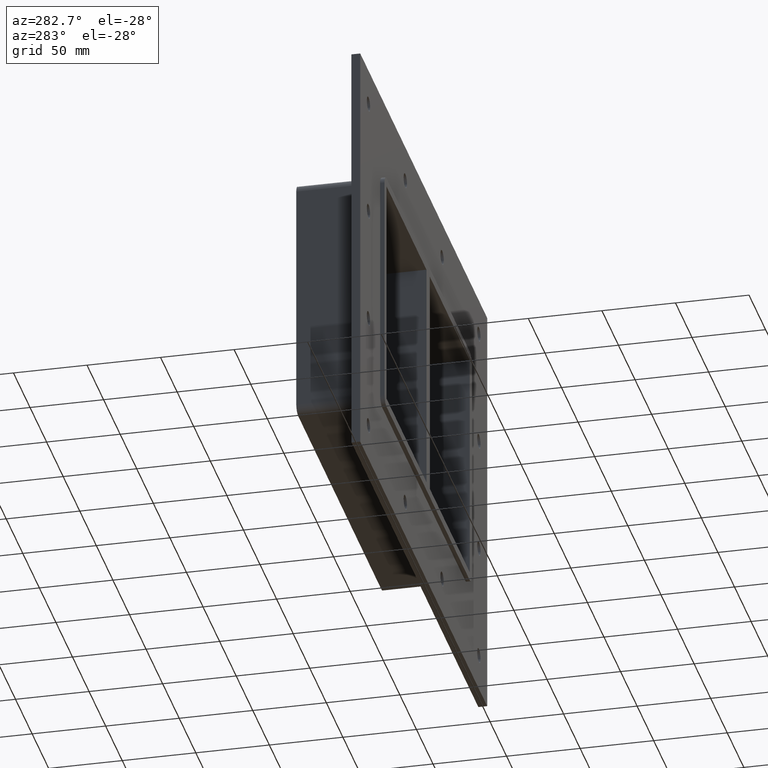
[diagram: clean part render]
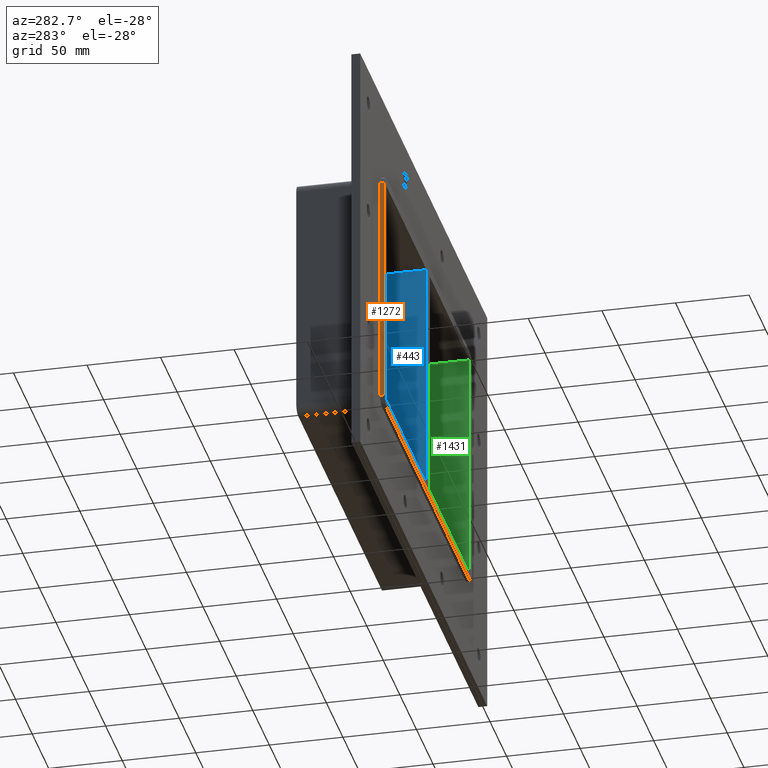
[diagram: same view with three faces highlighted in distinct colors, each labeled with its STEP entity id]
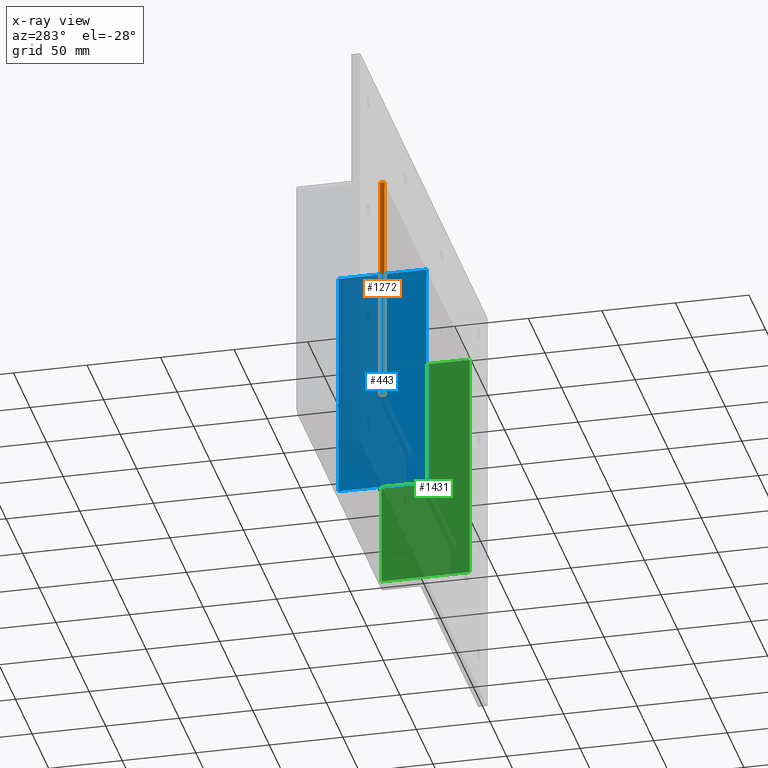
[diagram: x-ray of the same camera — body ghosted, the three highlighted faces saturated]
A machine part, auxiliary view with three faces highlighted in distinct colors.
The next image is the same camera in x-ray (body ghosted, the three faces saturated) — at least one of them is partly hidden behind the body in this view.
Their STEP definitions:

[orange] entity #1272 — the highlighted planar face has unit normal (-1, 0, 0).
#829=CARTESIAN_POINT('',(-131.5,0.0,-79.750000000000028));
#830=VERTEX_POINT('',#829);
#840=CARTESIAN_POINT('',(-131.5,0.0,79.750000000000028));
#841=VERTEX_POINT('',#840);
#842=CARTESIAN_POINT('',(-131.5,0.0,79.750000000000014));
#843=DIRECTION('',(0.0,0.0,-1.0));
#844=VECTOR('',#843,159.50000000000006);
#845=LINE('',#842,#844);
#846=EDGE_CURVE('',#841,#830,#845,.T.);
#1182=CARTESIAN_POINT('',(-131.5,-3.0,79.750000000000014));
#1183=VERTEX_POINT('',#1182);
#1184=CARTESIAN_POINT('',(-131.5,0.0,79.750000000000028));
#1185=DIRECTION('',(0.0,-1.0,0.0));
#1186=VECTOR('',#1185,3.0);
#1187=LINE('',#1184,#1186);
#1188=EDGE_CURVE('',#841,#1183,#1187,.T.);
#1249=CARTESIAN_POINT('',(-131.5,0.0,-85.750000000000028));
#1250=DIRECTION('',(-1.0,0.0,0.0));
#1251=DIRECTION('',(0.0,0.0,1.0));
#1252=AXIS2_PLACEMENT_3D('',#1249,#1250,#1251);
#1253=PLANE('',#1252);
#1254=ORIENTED_EDGE('',*,*,#846,.T.);
#1255=CARTESIAN_POINT('',(-131.5,-3.0,-79.750000000000028));
#1256=VERTEX_POINT('',#1255);
#1257=CARTESIAN_POINT('',(-131.5,-3.0,-79.750000000000028));
#1258=DIRECTION('',(0.0,1.0,0.0));
#1259=VECTOR('',#1258,3.0);
#1260=LINE('',#1257,#1259);
#1261=EDGE_CURVE('',#1256,#830,#1260,.T.);
#1262=ORIENTED_EDGE('',*,*,#1261,.F.);
#1263=CARTESIAN_POINT('',(-131.5,-3.0,79.750000000000028));
#1264=DIRECTION('',(0.0,0.0,-1.0));
#1265=VECTOR('',#1264,159.50000000000006);
#1266=LINE('',#1263,#1265);
#1267=EDGE_CURVE('',#1183,#1256,#1266,.T.);
#1268=ORIENTED_EDGE('',*,*,#1267,.F.);
#1269=ORIENTED_EDGE('',*,*,#1188,.F.);
#1270=EDGE_LOOP('',(#1254,#1262,#1268,#1269));
#1271=FACE_OUTER_BOUND('',#1270,.T.);
#1272=ADVANCED_FACE('',(#1271),#1253,.T.);

[blue] entity #443 — the highlighted planar face has unit normal (-1, 0, 0).
#404=CARTESIAN_POINT('',(-5.000000000001279,-3.0,-79.750000000000014));
#405=DIRECTION('',(-1.0,0.0,0.0));
#406=DIRECTION('',(0.0,0.0,1.0));
#407=AXIS2_PLACEMENT_3D('',#404,#405,#406);
#408=PLANE('',#407);
#409=CARTESIAN_POINT('',(-5.000000000001279,-3.0,-79.750000000000014));
#410=VERTEX_POINT('',#409);
#411=CARTESIAN_POINT('',(-5.000000000001315,-3.0,79.750000000000014));
#412=VERTEX_POINT('',#411);
#413=CARTESIAN_POINT('',(-5.000000000001279,-3.0,-79.750000000000014));
#414=DIRECTION('',(0.0,0.0,1.0));
#415=VECTOR('',#414,159.50000000000003);
#416=LINE('',#413,#415);
#417=EDGE_CURVE('',#410,#412,#416,.T.);
#418=ORIENTED_EDGE('',*,*,#417,.T.);
#419=CARTESIAN_POINT('',(-5.000000000001315,57.0,79.750000000000014));
#420=VERTEX_POINT('',#419);
#421=CARTESIAN_POINT('',(-5.000000000001315,57.000000000000007,79.750000000000014));
#422=DIRECTION('',(0.0,-1.0,0.0));
#423=VECTOR('',#422,60.000000000000007);
#424=LINE('',#421,#423);
#425=EDGE_CURVE('',#420,#412,#424,.T.);
#426=ORIENTED_EDGE('',*,*,#425,.F.);
#427=CARTESIAN_POINT('',(-5.000000000001279,57.0,-79.750000000000014));
#428=VERTEX_POINT('',#427);
#429=CARTESIAN_POINT('',(-5.000000000001279,57.0,-79.750000000000014));
#430=DIRECTION('',(0.0,0.0,1.0));
#431=VECTOR('',#430,159.50000000000003);
#432=LINE('',#429,#431);
#433=EDGE_CURVE('',#428,#420,#432,.T.);
#434=ORIENTED_EDGE('',*,*,#433,.F.);
#435=CARTESIAN_POINT('',(-5.000000000001279,-3.0,-79.750000000000014));
#436=DIRECTION('',(0.0,1.0,0.0));
#437=VECTOR('',#436,60.000000000000007);
#438=LINE('',#435,#437);
#439=EDGE_CURVE('',#410,#428,#438,.T.);
#440=ORIENTED_EDGE('',*,*,#439,.F.);
#441=EDGE_LOOP('',(#418,#426,#434,#440));
#442=FACE_OUTER_BOUND('',#441,.T.);
#443=ADVANCED_FACE('',(#442),#408,.T.);

[green] entity #1431 — the highlighted planar face has unit normal (1, 0, 0).
#521=CARTESIAN_POINT('',(125.49999999999997,-3.0,-79.750000000000014));
#522=VERTEX_POINT('',#521);
#529=CARTESIAN_POINT('',(125.49999999999997,57.0,-79.750000000000014));
#530=VERTEX_POINT('',#529);
#531=CARTESIAN_POINT('',(125.49999999999997,56.999999999999993,-79.750000000000014));
#532=DIRECTION('',(0.0,-1.0,0.0));
#533=VECTOR('',#532,59.999999999999993);
#534=LINE('',#531,#533);
#535=EDGE_CURVE('',#530,#522,#534,.T.);
#552=CARTESIAN_POINT('',(125.49999999999997,57.0,79.750000000000014));
#553=VERTEX_POINT('',#552);
#560=CARTESIAN_POINT('',(125.49999999999997,-3.0,79.750000000000014));
#561=VERTEX_POINT('',#560);
#562=CARTESIAN_POINT('',(125.49999999999997,-3.0,79.750000000000014));
#563=DIRECTION('',(0.0,1.0,0.0));
#564=VECTOR('',#563,60.0);
#565=LINE('',#562,#564);
#566=EDGE_CURVE('',#561,#553,#565,.T.);
#1314=CARTESIAN_POINT('',(125.49999999999997,-3.0,79.750000000000014));
#1315=DIRECTION('',(0.0,0.0,-1.0));
#1316=VECTOR('',#1315,159.50000000000006);
#1317=LINE('',#1314,#1316);
#1318=EDGE_CURVE('',#561,#522,#1317,.T.);
#1415=CARTESIAN_POINT('',(125.49999999999997,0.0,79.750000000000014));
#1416=DIRECTION('',(1.0,0.0,0.0));
#1417=DIRECTION('',(0.0,0.0,-1.0));
#1418=AXIS2_PLACEMENT_3D('',#1415,#1416,#1417);
#1419=PLANE('',#1418);
#1420=ORIENTED_EDGE('',*,*,#535,.T.);
#1421=ORIENTED_EDGE('',*,*,#1318,.F.);
#1422=ORIENTED_EDGE('',*,*,#566,.T.);
#1423=CARTESIAN_POINT('',(125.49999999999997,57.0,-79.750000000000028));
#1424=DIRECTION('',(0.0,0.0,1.0));
#1425=VECTOR('',#1424,159.50000000000006);
#1426=LINE('',#1423,#1425);
#1427=EDGE_CURVE('',#530,#553,#1426,.T.);
#1428=ORIENTED_EDGE('',*,*,#1427,.F.);
#1429=EDGE_LOOP('',(#1420,#1421,#1422,#1428));
#1430=FACE_OUTER_BOUND('',#1429,.T.);
#1431=ADVANCED_FACE('',(#1430),#1419,.F.);